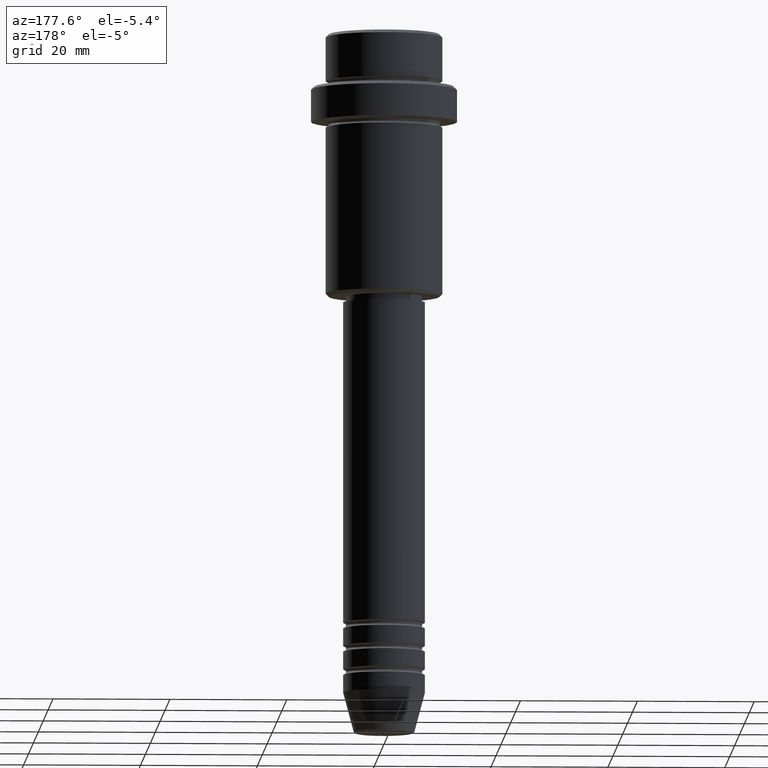
[diagram: clean part render]
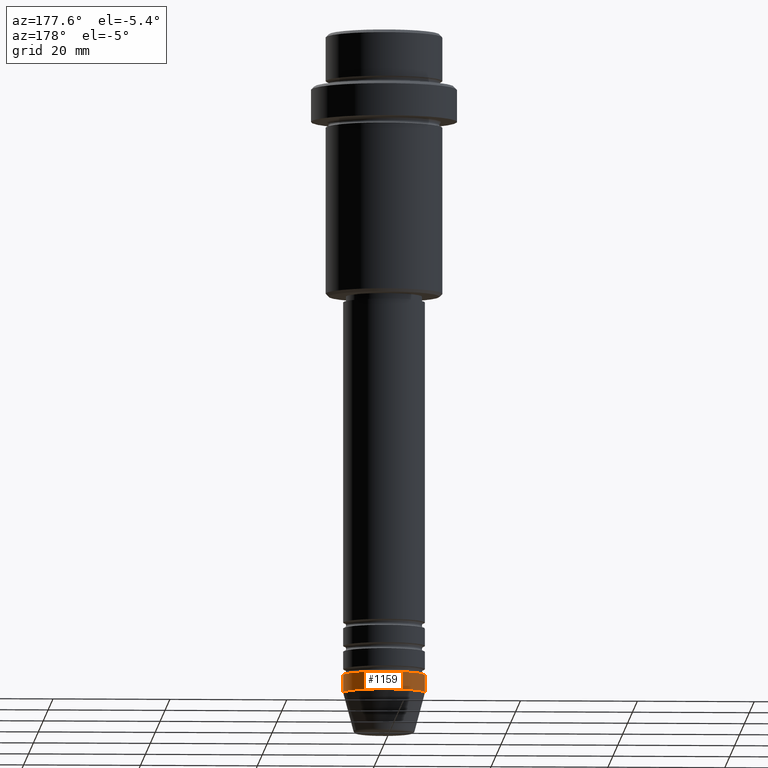
[diagram: same view with one face highlighted and labeled with its STEP entity id]
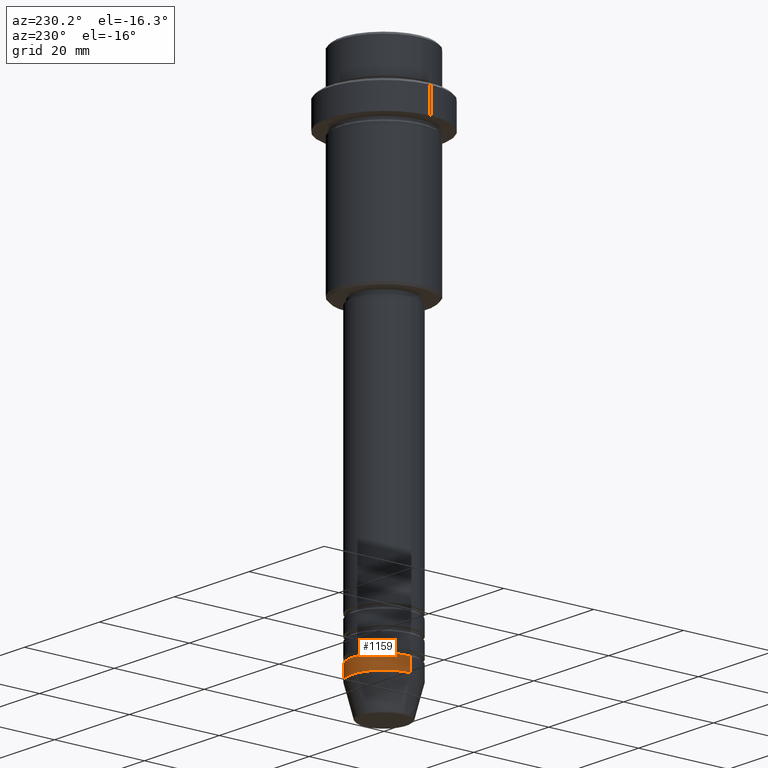
[diagram: same view with one face highlighted and labeled with its STEP entity id]
A machine part, auxiliary view. The second image highlights one B-rep face of the part: STEP entity #1159.
A second angle (auxiliary view) of the same face is appended — the face is thin or edge-on in the first view.
In plain terms, the highlighted cylindrical surface (partial cylindrical patch) has radius 7 mm, axis along (-0, -0, 1).
Its self-contained STEP definition (entity closure, byte-faithful):
#52 = AXIS2_PLACEMENT_3D ( 'NONE', #1400, #328, #961 ) ;
#173 = CARTESIAN_POINT ( 'NONE',  ( 7.000000000000000000, 0.000000000000000000, -109.9999999999999858 ) ) ;
#183 = ORIENTED_EDGE ( 'NONE', *, *, #836, .T. ) ;
#188 = CYLINDRICAL_SURFACE ( 'NONE', #1278, 7.000000000000000000 ) ;
#289 = CARTESIAN_POINT ( 'NONE',  ( 7.000000000000000000, 0.000000000000000000, -112.9999999999999858 ) ) ;
#294 = DIRECTION ( 'NONE',  ( -0.000000000000000000, -0.000000000000000000, 1.000000000000000000 ) ) ;
#301 = CARTESIAN_POINT ( 'NONE',  ( 7.000000000000000000, 0.000000000000000000, 0.000000000000000000 ) ) ;
#327 = CARTESIAN_POINT ( 'NONE',  ( -7.000000000000000000, 8.572527594031473190E-16, -109.9999999999999858 ) ) ;
#328 = DIRECTION ( 'NONE',  ( -0.000000000000000000, -0.000000000000000000, 1.000000000000000000 ) ) ;
#345 = VERTEX_POINT ( 'NONE', #1112 ) ;
#379 = CIRCLE ( 'NONE', #52, 7.000000000000000000 ) ;
#419 = LINE ( 'NONE', #926, #1035 ) ;
#429 = FACE_OUTER_BOUND ( 'NONE', #1188, .T. ) ;
#510 = DIRECTION ( 'NONE',  ( -0.000000000000000000, -0.000000000000000000, 1.000000000000000000 ) ) ;
#544 = VERTEX_POINT ( 'NONE', #173 ) ;
#553 = VECTOR ( 'NONE', #510, 1000.000000000000000 ) ;
#586 = AXIS2_PLACEMENT_3D ( 'NONE', #1038, #294, #816 ) ;
#641 = CIRCLE ( 'NONE', #586, 7.000000000000000000 ) ;
#716 = DIRECTION ( 'NONE',  ( -0.000000000000000000, -0.000000000000000000, 1.000000000000000000 ) ) ;
#753 = ORIENTED_EDGE ( 'NONE', *, *, #1133, .F. ) ;
#785 = VERTEX_POINT ( 'NONE', #289 ) ;
#816 = DIRECTION ( 'NONE',  ( 1.000000000000000000, 0.000000000000000000, 0.000000000000000000 ) ) ;
#836 = EDGE_CURVE ( 'NONE', #785, #345, #641, .T. ) ;
#841 = DIRECTION ( 'NONE',  ( 1.000000000000000000, 0.000000000000000000, 0.000000000000000000 ) ) ;
#852 = ORIENTED_EDGE ( 'NONE', *, *, #1174, .T. ) ;
#926 = CARTESIAN_POINT ( 'NONE',  ( -7.000000000000000000, 8.572527594031473190E-16, 0.000000000000000000 ) ) ;
#961 = DIRECTION ( 'NONE',  ( 1.000000000000000000, 0.000000000000000000, 0.000000000000000000 ) ) ;
#1035 = VECTOR ( 'NONE', #716, 1000.000000000000000 ) ;
#1038 = CARTESIAN_POINT ( 'NONE',  ( 0.000000000000000000, 0.000000000000000000, -112.9999999999999858 ) ) ;
#1112 = CARTESIAN_POINT ( 'NONE',  ( -7.000000000000000000, 8.572527594031473190E-16, -112.9999999999999858 ) ) ;
#1133 = EDGE_CURVE ( 'NONE', #544, #1306, #379, .T. ) ;
#1159 = ADVANCED_FACE ( 'NONE', ( #429 ), #188, .T. ) ;
#1174 = EDGE_CURVE ( 'NONE', #345, #1306, #419, .T. ) ;
#1188 = EDGE_LOOP ( 'NONE', ( #183, #852, #753, #1210 ) ) ;
#1210 = ORIENTED_EDGE ( 'NONE', *, *, #1256, .F. ) ;
#1256 = EDGE_CURVE ( 'NONE', #785, #544, #1274, .T. ) ;
#1264 = DIRECTION ( 'NONE',  ( -0.000000000000000000, -0.000000000000000000, 1.000000000000000000 ) ) ;
#1274 = LINE ( 'NONE', #301, #553 ) ;
#1278 = AXIS2_PLACEMENT_3D ( 'NONE', #1384, #1264, #841 ) ;
#1306 = VERTEX_POINT ( 'NONE', #327 ) ;
#1384 = CARTESIAN_POINT ( 'NONE',  ( 0.000000000000000000, 0.000000000000000000, 0.000000000000000000 ) ) ;
#1400 = CARTESIAN_POINT ( 'NONE',  ( 0.000000000000000000, 0.000000000000000000, -109.9999999999999858 ) ) ;